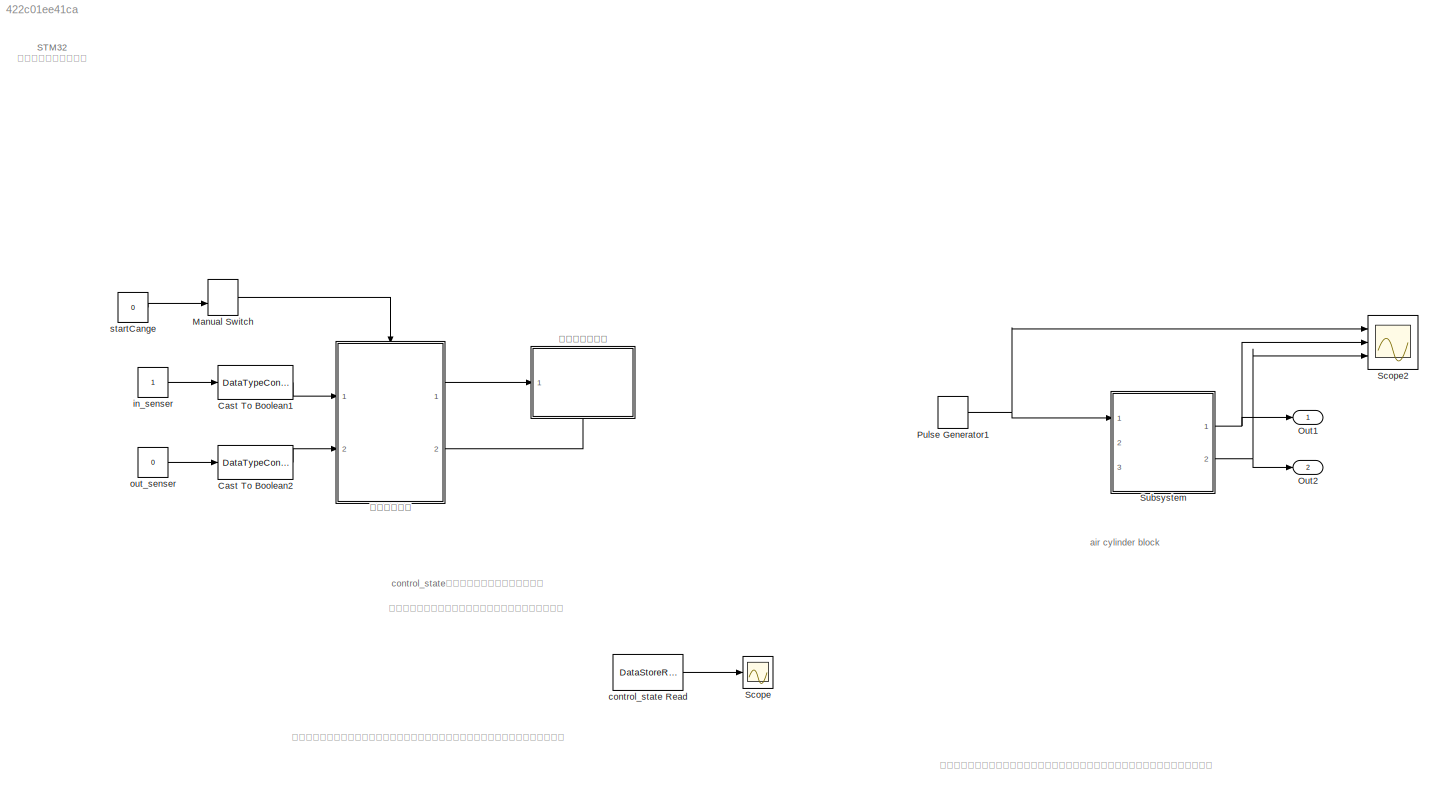
MODEL slx_422c01ee41ca
KIND model
CONFIG AbsTol = auto
CONFIG EnableMultiTasking = off
CONFIG FixedStep = 1
CONFIG MaxStep = auto
CONFIG MinStep = auto
CONFIG RelTol = 1e-3
CONFIG SampleTimeConstraint = Unconstrained
CONFIG Solver = FixedStepAuto
CONFIG SolverName = FixedStepAuto
CONFIG StartTime = 0.0
CONFIG StopTime = 30.0
BLOCK [DataTypeConversion] Cast To Boolean1
  OutDataTypeStr = boolean
  RndMeth = Floor
  SaturateOnIntegerOverflow = off
BLOCK [DataTypeConversion] Cast To Boolean2
  OutDataTypeStr = boolean
  RndMeth = Floor
  SaturateOnIntegerOverflow = off
BLOCK [ManualSwitch] Manual Switch
BLOCK [Outport] Out1
  IconDisplay = Port number
BLOCK [Outport] Out2
  IconDisplay = Port number
  Port = 2
BLOCK [DiscretePulseGenerator] Pulse Generator1
  Ports = [0, 1]
  PulseType = Time based
  PulseWidth = 50
BLOCK [Scope] Scope
  Floating = off
  NumInputPorts = 1
  Ports = [1]
  ScopeSpecificationString = Simulink.scopes.TimeScopeBlockCfg('CurrentConfiguration', extmgr.ConfigurationSet(extmgr.Configuration('Core','General UI',true),extmgr.Configuration('Core','Source UI',true),extmgr.Configuration('Sources','WiredSimulink',true),extmgr.Configuration('Visuals','Time Domain',true,'SerializedDisplays',{struct('MinYLimReal','-1.00000','MaxYLimReal','1.00000','YLabelReal','','MinYLimMag','0.00000','MaxY...<+1401ch>
BLOCK [Scope] Scope2
  Floating = off
  NumInputPorts = 3
  Ports = [3]
  ScopeSpecificationString = Simulink.scopes.TimeScopeBlockCfg('CurrentConfiguration', extmgr.ConfigurationSet(extmgr.Configuration('Core','General UI',true),extmgr.Configuration('Core','Source UI',true),extmgr.Configuration('Sources','WiredSimulink',true,'DataLoggingVariableName','ScopeData1'),extmgr.Configuration('Visuals','Time Domain',true,'SerializedDisplays',{struct('MinYLimReal','-0.625','MaxYLimReal','5.625','YLabelRe...<+2154ch>
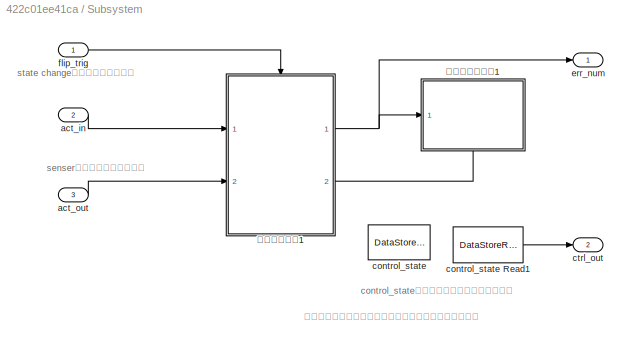
BLOCK [SubSystem] Subsystem
  Ports = [3, 2]
  RequestExecContextInheritance = off
BLOCK [Inport] Subsystem/act_in
  IconDisplay = Port number
  Port = 2
BLOCK [Inport] Subsystem/act_out
  IconDisplay = Port number
  Port = 3
BLOCK [DataStoreMemory] Subsystem/control_state
  DataStoreName = out_state
  InitialValue = false
  OutDataTypeStr = boolean
  ReadBeforeWriteMsg = warning
  ShowAdditionalParam = off
  WriteAfterReadMsg = warning
  WriteAfterWriteMsg = warning
BLOCK [DataStoreRead] Subsystem/control_state Read1
  DataStoreName = out_state
  Ports = [0, 1]
BLOCK [Outport] Subsystem/ctrl_out
  IconDisplay = Port number
  Port = 2
BLOCK [Outport] Subsystem/err_num
  IconDisplay = Port number
BLOCK [Inport] Subsystem/flip_trig
  IconDisplay = Port number
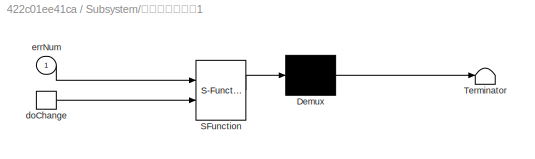
BLOCK [SubSystem] Subsystem/执行翻转或报错1
  ErrorFcn = Stateflow.Translate.translate
  PermitHierarchicalResolution = ExplicitOnly
  Ports = [1, 0, 0, 1]
  RequestExecContextInheritance = off
  SFBlockType = Chart
  TreatAsAtomicUnit = on
BLOCK [Demux] Subsystem/执行翻转或报错1/ Demux 
  Outputs = 1
  Ports = [1, 1]
BLOCK [S-Function] Subsystem/执行翻转或报错1/ SFunction 
  EnableBusSupport = on
  FunctionName = sf_sfun
  PortCounts = [2 1]
  Ports = [2, 1]
  SFcnIsStateOwnerBlock = off
  SFunctionDeploymentMode = off
  Tag = Stateflow S-Function singalAriClinder 2
BLOCK [Terminator] Subsystem/执行翻转或报错1/ Terminator 
BLOCK [TriggerPort] Subsystem/执行翻转或报错1/doChange
  Ports = [0, 1]
  ShowOutputPort = on
  StatesWhenEnabling = held
  TriggerType = either
  VariantControl = (inherit)
BLOCK [Inport] Subsystem/执行翻转或报错1/errNum
  IconDisplay = Port number
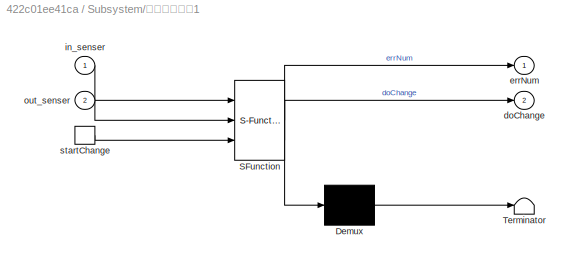
BLOCK [SubSystem] Subsystem/气缸翻转检验1
  ErrorFcn = Stateflow.Translate.translate
  PermitHierarchicalResolution = ExplicitOnly
  Ports = [2, 2, 0, 1]
  RequestExecContextInheritance = off
  SFBlockType = Chart
  TreatAsAtomicUnit = on
BLOCK [Demux] Subsystem/气缸翻转检验1/ Demux 
  Outputs = 1
  Ports = [1, 1]
BLOCK [S-Function] Subsystem/气缸翻转检验1/ SFunction 
  EnableBusSupport = on
  FunctionName = sf_sfun
  PortCounts = [3 3]
  Ports = [3, 3]
  SFcnIsStateOwnerBlock = off
  SFunctionDeploymentMode = off
  Tag = Stateflow S-Function singalAriClinder 4
BLOCK [Terminator] Subsystem/气缸翻转检验1/ Terminator 
BLOCK [Outport] Subsystem/气缸翻转检验1/doChange
  IconDisplay = Port number
  Port = 2
BLOCK [Outport] Subsystem/气缸翻转检验1/errNum
  IconDisplay = Port number
BLOCK [Inport] Subsystem/气缸翻转检验1/in_senser
  IconDisplay = Port number
BLOCK [Inport] Subsystem/气缸翻转检验1/out_senser
  IconDisplay = Port number
  Port = 2
BLOCK [TriggerPort] Subsystem/气缸翻转检验1/startChange
  Ports = [0, 1]
  ShowOutputPort = on
  StatesWhenEnabling = held
  TriggerType = either
  VariantControl = (inherit)
BLOCK [DataStoreRead] control_state Read
  DataStoreName = out_state
  Ports = [0, 1]
BLOCK [Constant] in_senser
BLOCK [Constant] out_senser
  Value = 0
BLOCK [Constant] startCange 
  Value = 0
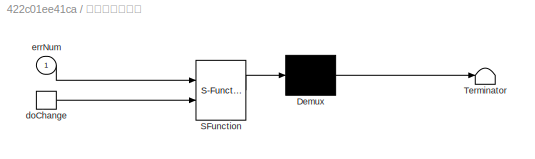
BLOCK [SubSystem] 执行翻转或报错
  ErrorFcn = Stateflow.Translate.translate
  PermitHierarchicalResolution = ExplicitOnly
  Ports = [1, 0, 0, 1]
  RequestExecContextInheritance = off
  SFBlockType = Chart
  TreatAsAtomicUnit = on
BLOCK [Demux] 执行翻转或报错/ Demux 
  Outputs = 1
  Ports = [1, 1]
BLOCK [S-Function] 执行翻转或报错/ SFunction 
  EnableBusSupport = on
  FunctionName = sf_sfun
  PortCounts = [2 1]
  Ports = [2, 1]
  SFcnIsStateOwnerBlock = off
  SFunctionDeploymentMode = off
  Tag = Stateflow S-Function singalAriClinder 3
BLOCK [Terminator] 执行翻转或报错/ Terminator 
BLOCK [TriggerPort] 执行翻转或报错/doChange
  Ports = [0, 1]
  ShowOutputPort = on
  StatesWhenEnabling = held
  TriggerType = either
  VariantControl = (inherit)
BLOCK [Inport] 执行翻转或报错/errNum
  IconDisplay = Port number
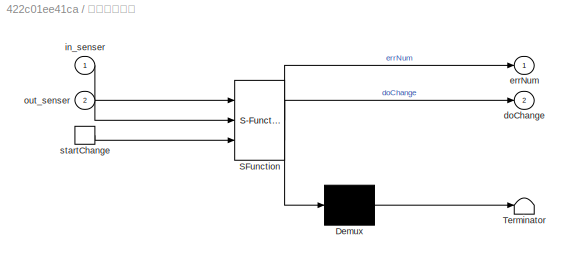
BLOCK [SubSystem] 气缸翻转检验
  ErrorFcn = Stateflow.Translate.translate
  PermitHierarchicalResolution = ExplicitOnly
  Ports = [2, 2, 0, 1]
  RequestExecContextInheritance = off
  SFBlockType = Chart
  TreatAsAtomicUnit = on
BLOCK [Demux] 气缸翻转检验/ Demux 
  Outputs = 1
  Ports = [1, 1]
BLOCK [S-Function] 气缸翻转检验/ SFunction 
  EnableBusSupport = on
  FunctionName = sf_sfun
  PortCounts = [3 3]
  Ports = [3, 3]
  SFcnIsStateOwnerBlock = off
  SFunctionDeploymentMode = off
  Tag = Stateflow S-Function singalAriClinder 1
BLOCK [Terminator] 气缸翻转检验/ Terminator 
BLOCK [Outport] 气缸翻转检验/doChange
  IconDisplay = Port number
  Port = 2
BLOCK [Outport] 气缸翻转检验/errNum
  IconDisplay = Port number
BLOCK [Inport] 气缸翻转检验/in_senser
  IconDisplay = Port number
BLOCK [Inport] 气缸翻转检验/out_senser
  IconDisplay = Port number
  Port = 2
BLOCK [TriggerPort] 气缸翻转检验/startChange
  Ports = [0, 1]
  ShowOutputPort = on
  StatesWhenEnabling = held
  TriggerType = either
  VariantControl = (inherit)
ANNOTATION (root): STM32 自动化电池组测试系统
ANNOTATION (root): air cylinder block
ANNOTATION (root): control_state是控制气缸的状态（进出控制）
ANNOTATION (root): 该状态在启动时初始化，由一个〈初始变量表〉进行管理
ANNOTATION (root): 这个气缸实验，发出翻转指令后，经过外部条件检验和判断是否执行番转或报出异常错误
ANNOTATION Subsystem: state change信号由程序指令发出
ANNOTATION Subsystem: control_state是控制气缸的状态（进出控制）
ANNOTATION Subsystem: senser引出端口，但不做仿真
ANNOTATION Subsystem: 该状态在启动时初始化，由一个〈初始变量表〉进行管理
LINE Cast To Boolean1:1 -> 气缸翻转检验:1
LINE Cast To Boolean2:1 -> 气缸翻转检验:2
LINE Manual Switch:1 -> 气缸翻转检验:trigger
NET Pulse Generator1:1 -> Scope2:1, Subsystem:1
LINE Subsystem/act_in:1 -> Subsystem/气缸翻转检验1:1
LINE Subsystem/act_out:1 -> Subsystem/气缸翻转检验1:2
LINE Subsystem/control_state Read1:1 -> Subsystem/ctrl_out:1
LINE Subsystem/flip_trig:1 -> Subsystem/气缸翻转检验1:trigger
NET Subsystem/气缸翻转检验1:1 -> Subsystem/err_num:1, Subsystem/执行翻转或报错1:1
LINE Subsystem/气缸翻转检验1:2 -> Subsystem/执行翻转或报错1:trigger
NET Subsystem:1 -> Out1:1, Scope2:2
NET Subsystem:2 -> Out2:1, Scope2:3
LINE control_state Read:1 -> Scope:1
LINE in_senser:1 -> Cast To Boolean1:1
LINE out_senser:1 -> Cast To Boolean2:1
LINE startCange :1 -> Manual Switch:2
LINE 气缸翻转检验:1 -> 执行翻转或报错:1
LINE 气缸翻转检验:2 -> 执行翻转或报错:trigger
note: NET lines group one-source signal fan-out (src -> all destinations, sorted); 1:1 wires keep LINE
CHART 气缸翻转检验 states=4 transitions=1
  STATE_LABEL 'startChange有效，再把startChange转发出去'
  STATE_LABEL 'error=CylinderCanChange(cyl_outSta,in_sen,out_sen)'
  STATE_LABEL 'SCRIPT:\nfunction error=CylinderCanChange(cyl_outSta,in_sen,out_sen)\n\naVarTruthTableCondition_1 = false;\naVarTruthTableCondition_2 = false;\naVarTruthTableCondition_3 = false;\n\n\n% 气缸在伸出状态\n\naVarTruthTableCondition_1 = logical(cyl_outSta==true);\n\n% 缩进传感器点亮\n\naVarTruthTableCondition_2 = logical(in_sen==true);\n\n% 伸出传感器点亮\n\naVarTruthTableCondition_3 = logical(out_sen==true);\n\nif (aVarTruthTableCondition_1 ...<+1053ch>'
  STATE_LABEL '<!DOCTYPE HTML PUBLIC "-//W3C//DTD HTML 4.0//EN" "http://www.w3.org/TR/REC-html40/strict.dtd">\n<html><head><meta name="qrichtext" content="1" /><style type="text/css">\np, li { white-space: pre-wrap; }\n</style></head><body style=" font-family:\'Helvetica\'; font-size:12px; font-weight:400; font-style:normal;">\n<p style=" margin-top:0px; margin-bottom:0px; margin-left:0px; margin-right:0px; -qt-block-...<+265ch>'
  STATE_LABEL '一个气缸动作的相关参数：\n输入有3个：（来自外设的GPIO）\ncyl_outsta.        当前的气缸状态(是否在输出状态）     --- 1个\nin_sen--out_sen. 当前进出的感应头状态  --- 2个 \n\n输出有1个\nerror. 错误 --- 1个\n\n\n'
CHART Subsystem/执行翻转或报错1 states=1 transitions=6
  STATE_LABEL '路径2,改变当前的out_state'
CHART 执行翻转或报错 states=1 transitions=6
  STATE_LABEL '路径2,改变当前的out_state'
CHART Subsystem/气缸翻转检验1 states=4 transitions=1
  STATE_LABEL 'startChange有效，再把startChange转发出去'
  STATE_LABEL 'error=CylinderCanChange(cyl_outSta,in_sen,out_sen)'
  STATE_LABEL 'SCRIPT:\nfunction error=CylinderCanChange(cyl_outSta,in_sen,out_sen)\n\naVarTruthTableCondition_1 = false;\naVarTruthTableCondition_2 = false;\naVarTruthTableCondition_3 = false;\n\n\n% 气缸在伸出状态\n\naVarTruthTableCondition_1 = logical(cyl_outSta==true);\n\n% 缩进传感器点亮\n\naVarTruthTableCondition_2 = logical(in_sen==true);\n\n% 伸出传感器点亮\n\naVarTruthTableCondition_3 = logical(out_sen==true);\n\nif (aVarTruthTableCondition_1 ...<+1053ch>'
  STATE_LABEL '<!DOCTYPE HTML PUBLIC "-//W3C//DTD HTML 4.0//EN" "http://www.w3.org/TR/REC-html40/strict.dtd">\n<html><head><meta name="qrichtext" content="1" /><style type="text/css">\np, li { white-space: pre-wrap; }\n</style></head><body style=" font-family:\'Helvetica\'; font-size:12px; font-weight:400; font-style:normal;">\n<p style=" margin-top:0px; margin-bottom:0px; margin-left:0px; margin-right:0px; -qt-block-...<+265ch>'
  STATE_LABEL '一个气缸动作的相关参数：\n输入有3个：（来自外设的GPIO）\ncyl_outsta.        当前的气缸状态(是否在输出状态）     --- 1个\nin_sen--out_sen. 当前进出的感应头状态  --- 2个 \n\n输出有1个\nerror. 错误 --- 1个\n\n\n'
